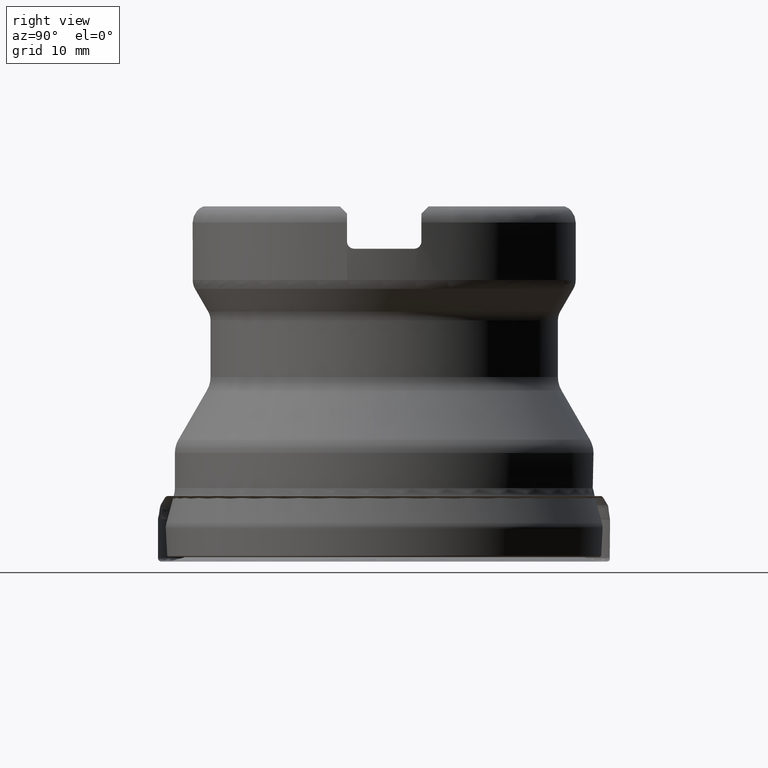
[diagram: clean part render]
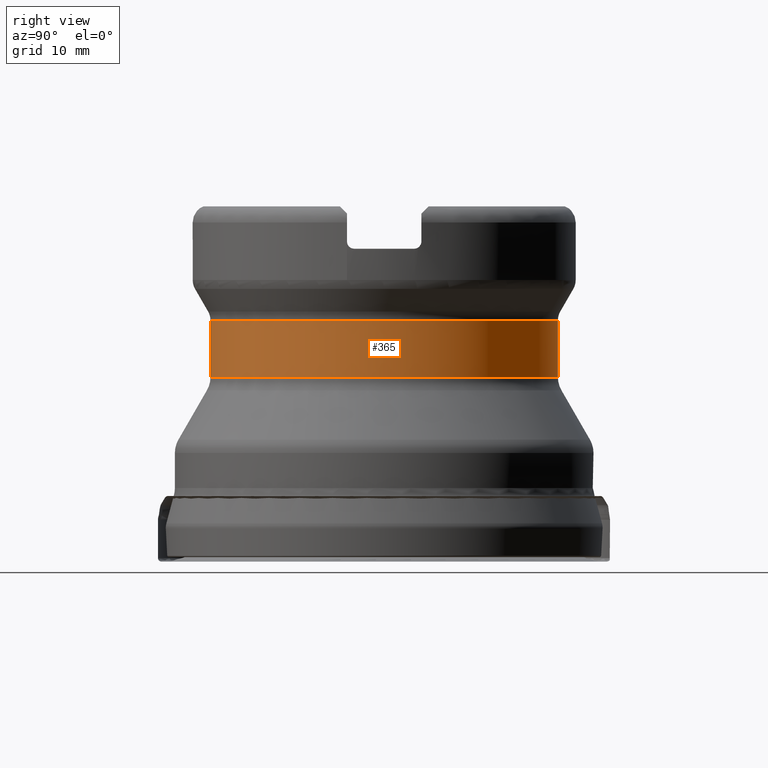
[diagram: same view with one face highlighted and labeled with its STEP entity id]
A machine part, right view. The second image highlights one B-rep face of the part: STEP entity #365.
In plain terms, the highlighted cylindrical surface (bore or boss wall) has radius 19.5011 mm, axis along (0, 0, 1).
Its self-contained STEP definition (entity closure, byte-faithful):
#153=CYLINDRICAL_SURFACE('',#1215,19.5011);
#177=FACE_BOUND('',#485,.T.);
#178=FACE_BOUND('',#486,.T.);
#365=ADVANCED_FACE('',(#177,#178),#153,.T.);
#485=EDGE_LOOP('',(#653));
#486=EDGE_LOOP('',(#654));
#653=ORIENTED_EDGE('',*,*,#977,.T.);
#654=ORIENTED_EDGE('',*,*,#978,.T.);
#873=VERTEX_POINT('',#2009);
#874=VERTEX_POINT('',#2011);
#977=EDGE_CURVE('',#873,#873,#1063,.T.);
#978=EDGE_CURVE('',#874,#874,#1064,.T.);
#1063=CIRCLE('',#1213,19.5011);
#1064=CIRCLE('',#1214,19.5011);
#1213=AXIS2_PLACEMENT_3D('',#2008,#1388,#1389);
#1214=AXIS2_PLACEMENT_3D('',#2010,#1390,#1391);
#1215=AXIS2_PLACEMENT_3D('',#2012,#1392,#1393);
#1388=DIRECTION('',(0.,1.17145536458252E-15,1.));
#1389=DIRECTION('',(0.,-1.,1.24537224380549E-15));
#1390=DIRECTION('',(0.,-1.17145536458252E-15,-1.));
#1391=DIRECTION('',(0.,-1.,1.24537224380549E-15));
#1392=DIRECTION('',(0.,1.17145536458252E-15,1.));
#1393=DIRECTION('',(0.,-1.,1.17145536458252E-15));
#2008=CARTESIAN_POINT('',(0.,2.42844402150927E-14,20.7301455516805));
#2009=CARTESIAN_POINT('',(0.,-19.5011,20.7301455516806));
#2010=CARTESIAN_POINT('',(0.,3.17206683621656E-14,27.078));
#2011=CARTESIAN_POINT('',(0.,-19.5011,27.078));
#2012=CARTESIAN_POINT('',(0.,0.,0.));